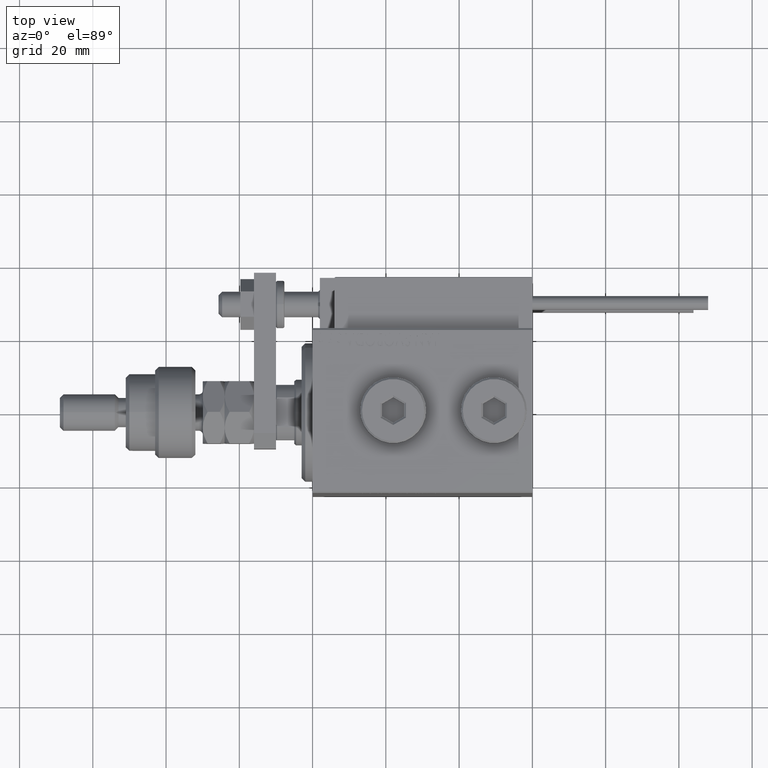
[diagram: clean part render]
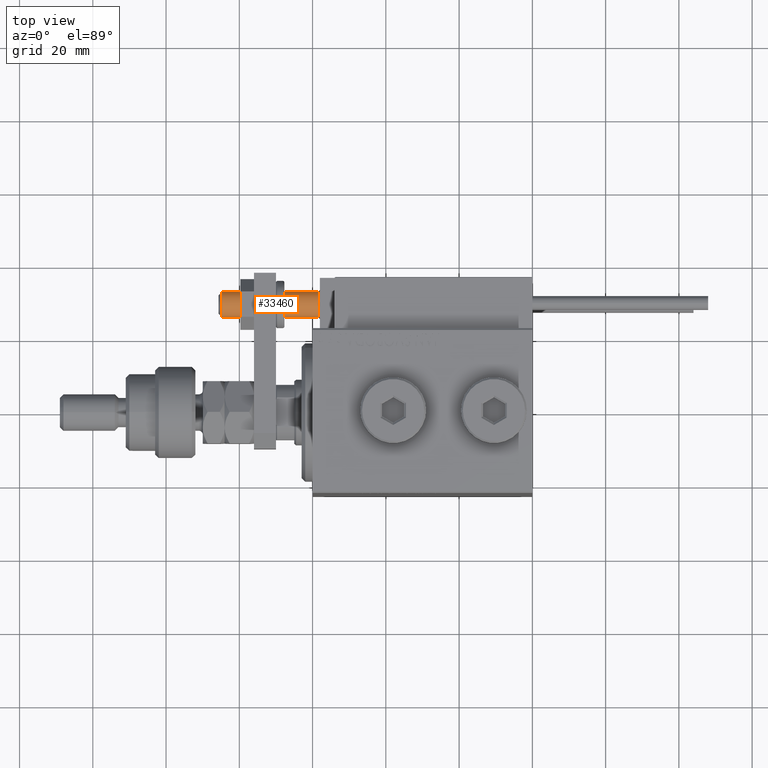
[diagram: same view with one face highlighted and labeled with its STEP entity id]
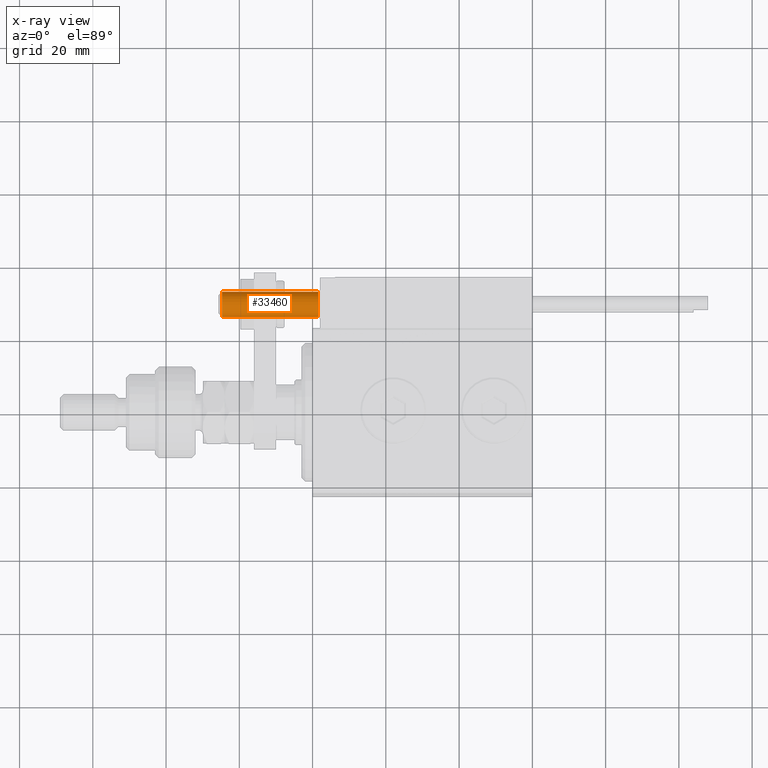
[diagram: x-ray of the same camera — body ghosted, the highlighted face saturated]
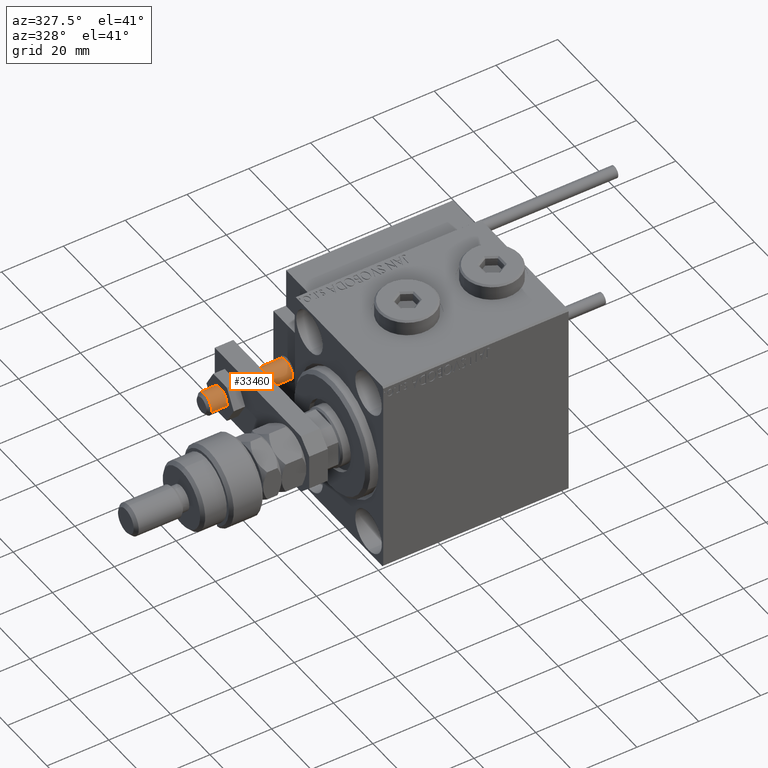
[diagram: same view with one face highlighted and labeled with its STEP entity id]
A machine part, top view. The second image highlights one B-rep face of the part: STEP entity #33460.
The next image is the same camera in x-ray: the body ghosted, the highlighted face saturated — about 0% of this face is hidden behind the body in this view.
A second angle (auxiliary view) of the same face is appended — the face is thin or edge-on in the first view.
In plain terms, the highlighted cylindrical surface (edge-blend (fillet) strip) has radius 3.5 mm, axis along (1, -0, -0).
Its self-contained STEP definition (entity closure, byte-faithful):
#469 = DIRECTION ( 'NONE',  ( -0.000000000000000000, -0.000000000000000000, 1.000000000000000000 ) ) ;
#694 = VERTEX_POINT ( 'NONE', #17486 ) ;
#1453 = CARTESIAN_POINT ( 'NONE',  ( 3.500000000000000000, 0.000000000000000000, -25.69999999999999929 ) ) ;
#4204 = ORIENTED_EDGE ( 'NONE', *, *, #34777, .F. ) ;
#5389 = FACE_OUTER_BOUND ( 'NONE', #38421, .T. ) ;
#6695 = EDGE_CURVE ( 'NONE', #9045, #48398, #33806, .T. ) ;
#7854 = VECTOR ( 'NONE', #43493, 1000.000000000000000 ) ;
#9045 = VERTEX_POINT ( 'NONE', #17261 ) ;
#9300 = DIRECTION ( 'NONE',  ( 0.000000000000000000, 0.000000000000000000, -1.000000000000000000 ) ) ;
#11771 = DIRECTION ( 'NONE',  ( -0.000000000000000000, -0.000000000000000000, 1.000000000000000000 ) ) ;
#12245 = CARTESIAN_POINT ( 'NONE',  ( -3.500000000000000000, 4.286263797015735609E-16, -24.70000000000002416 ) ) ;
#12609 = CARTESIAN_POINT ( 'NONE',  ( 0.000000000000000000, 0.000000000000000000, 1.500000000000030864 ) ) ;
#14472 = CARTESIAN_POINT ( 'NONE',  ( 0.000000000000000000, 0.000000000000000000, -24.70000000000002416 ) ) ;
#14807 = AXIS2_PLACEMENT_3D ( 'NONE', #38901, #469, #17222 ) ;
#17222 = DIRECTION ( 'NONE',  ( 1.000000000000000000, 0.000000000000000000, 0.000000000000000000 ) ) ;
#17261 = CARTESIAN_POINT ( 'NONE',  ( -3.500000000000000000, 4.286263797015735609E-16, 1.500000000000030864 ) ) ;
#17486 = CARTESIAN_POINT ( 'NONE',  ( 3.500000000000000000, 0.000000000000000000, -24.70000000000002416 ) ) ;
#18123 = ORIENTED_EDGE ( 'NONE', *, *, #30498, .T. ) ;
#18472 = LINE ( 'NONE', #1453, #7854 ) ;
#22039 = EDGE_CURVE ( 'NONE', #694, #36780, #36012, .T. ) ;
#29378 = DIRECTION ( 'NONE',  ( 1.000000000000000000, 0.000000000000000000, 0.000000000000000000 ) ) ;
#30498 = EDGE_CURVE ( 'NONE', #36780, #9045, #32653, .T. ) ;
#30977 = DIRECTION ( 'NONE',  ( 0.000000000000000000, 0.000000000000000000, 1.000000000000000000 ) ) ;
#31432 = ORIENTED_EDGE ( 'NONE', *, *, #22039, .T. ) ;
#32653 = LINE ( 'NONE', #49440, #38411 ) ;
#33460 = ADVANCED_FACE ( 'NONE', ( #5389 ), #33970, .T. ) ;
#33806 = CIRCLE ( 'NONE', #47879, 3.500000000000000000 ) ;
#33970 = CYLINDRICAL_SURFACE ( 'NONE', #14807, 3.500000000000000000 ) ;
#34777 = EDGE_CURVE ( 'NONE', #694, #48398, #18472, .T. ) ;
#36012 = CIRCLE ( 'NONE', #53620, 3.500000000000000000 ) ;
#36780 = VERTEX_POINT ( 'NONE', #12245 ) ;
#38411 = VECTOR ( 'NONE', #11771, 1000.000000000000000 ) ;
#38421 = EDGE_LOOP ( 'NONE', ( #31432, #18123, #43613, #4204 ) ) ;
#38901 = CARTESIAN_POINT ( 'NONE',  ( 0.000000000000000000, 0.000000000000000000, -25.69999999999999929 ) ) ;
#43493 = DIRECTION ( 'NONE',  ( -0.000000000000000000, -0.000000000000000000, 1.000000000000000000 ) ) ;
#43613 = ORIENTED_EDGE ( 'NONE', *, *, #6695, .T. ) ;
#43621 = DIRECTION ( 'NONE',  ( -1.000000000000000000, 0.000000000000000000, 0.000000000000000000 ) ) ;
#44949 = CARTESIAN_POINT ( 'NONE',  ( 3.500000000000000000, 0.000000000000000000, 1.500000000000030864 ) ) ;
#47879 = AXIS2_PLACEMENT_3D ( 'NONE', #12609, #9300, #29378 ) ;
#48398 = VERTEX_POINT ( 'NONE', #44949 ) ;
#49440 = CARTESIAN_POINT ( 'NONE',  ( -3.500000000000000000, 4.286263797015735609E-16, -25.69999999999999929 ) ) ;
#53620 = AXIS2_PLACEMENT_3D ( 'NONE', #14472, #30977, #43621 ) ;